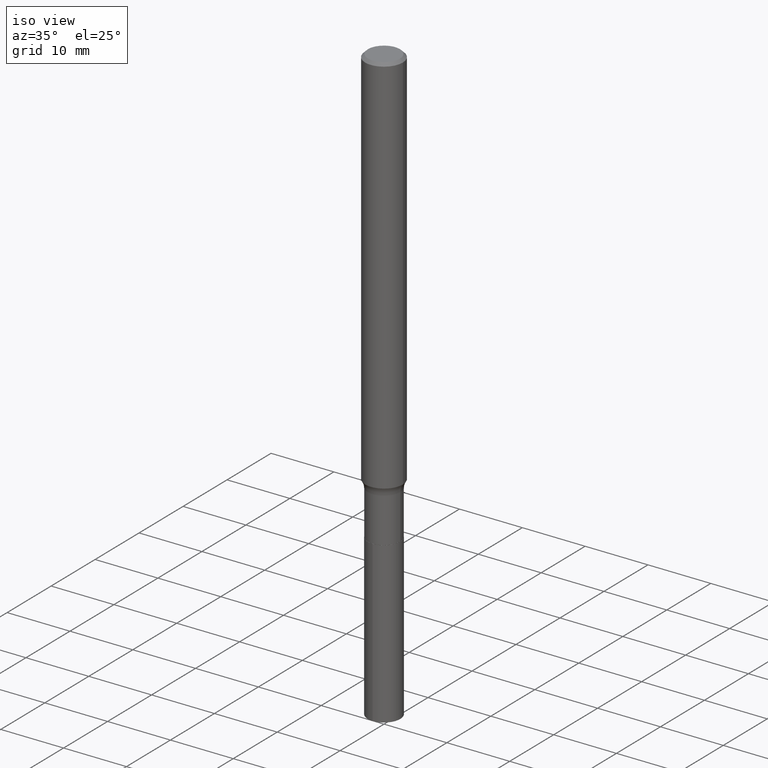
[diagram: clean part render]
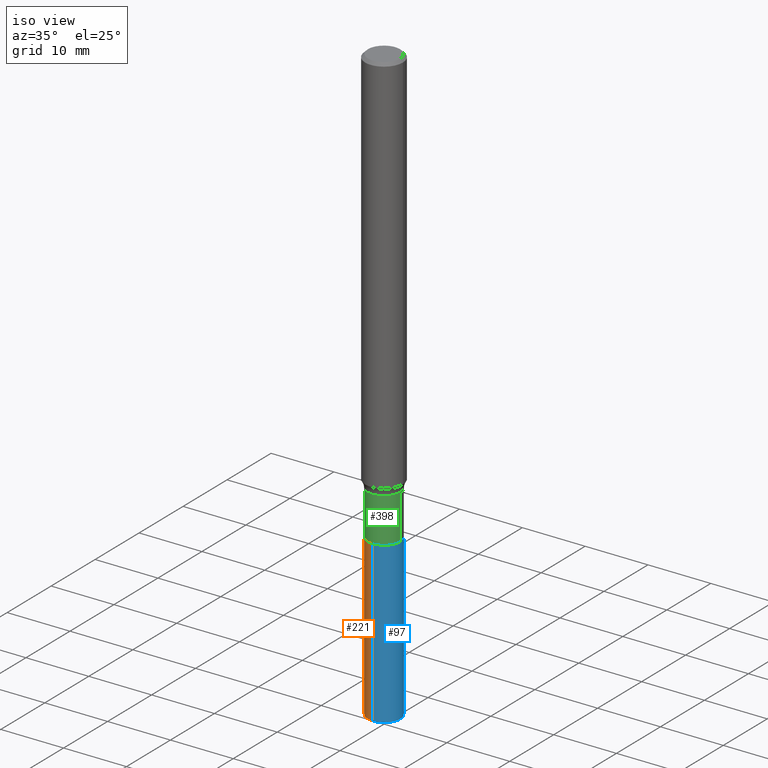
[diagram: same view with three faces highlighted in distinct colors, each labeled with its STEP entity id]
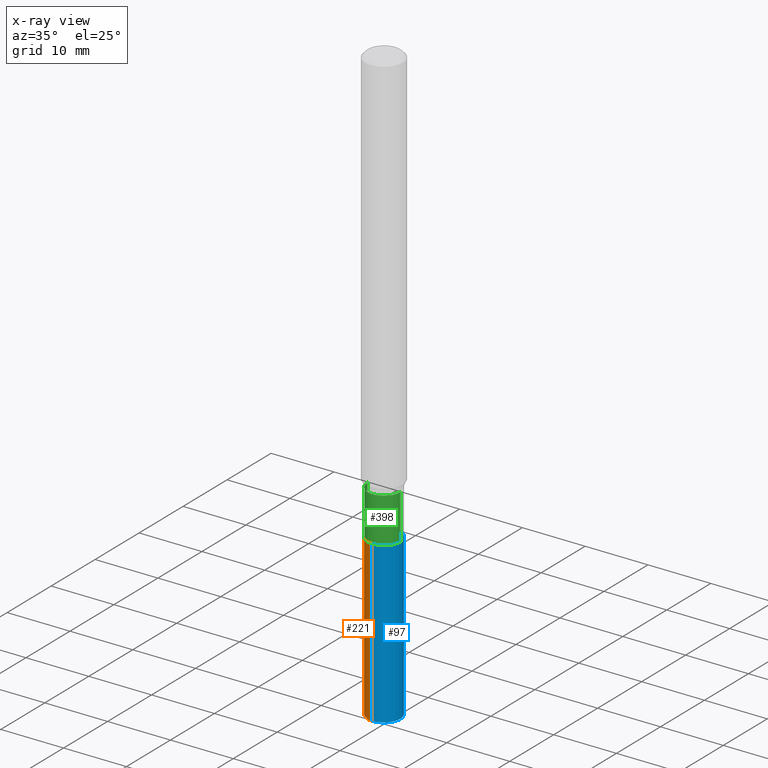
[diagram: x-ray of the same camera — body ghosted, the three highlighted faces saturated]
A machine part, iso view with three faces highlighted in distinct colors.
The next image is the same camera in x-ray (body ghosted, the three faces saturated) — at least one of them is partly hidden behind the body in this view.
Their STEP definitions:

[orange] entity #221 — the highlighted cylindrical surface (edge-blend (fillet) strip) has radius 2.5997 mm, axis along (-0, 0, 1).
#19 = EDGE_CURVE ( 'NONE', #412, #78, #111, .T. ) ;
#20 = DIRECTION ( 'NONE',  ( -6.982962677686265922E-15, -1.000000000000000000, 5.338247178630704739E-15 ) ) ;
#24 = ORIENTED_EDGE ( 'NONE', *, *, #193, .T. ) ;
#31 = CARTESIAN_POINT ( 'NONE',  ( -7.147062300611223431E-16, -0.1023500000000095583, -2.736199999999999743 ) ) ;
#32 = ORIENTED_EDGE ( 'NONE', *, *, #19, .T. ) ;
#35 = VECTOR ( 'NONE', #200, 39.37007874015748143 ) ;
#40 = ORIENTED_EDGE ( 'NONE', *, *, #215, .F. ) ;
#47 = CARTESIAN_POINT ( 'NONE',  ( -7.147062300610980856E-16, -0.1023500000000130833, -3.740200000000000191 ) ) ;
#72 = CARTESIAN_POINT ( 'NONE',  ( 7.272404900505293716E-16, 0.1023499999999904347, -2.736200000000000632 ) ) ;
#77 = DIRECTION ( 'NONE',  ( -2.438872900097953269E-29, 3.500927051775652151E-15, 1.000000000000000000 ) ) ;
#78 = VERTEX_POINT ( 'NONE', #47 ) ;
#86 = CARTESIAN_POINT ( 'NONE',  ( 9.139920139182118548E-29, -1.306832199932537301E-14, -3.740200000000000635 ) ) ;
#98 = EDGE_LOOP ( 'NONE', ( #284, #32, #24, #40 ) ) ;
#111 = CIRCLE ( 'NONE', #462, 0.1023500000000000243 ) ;
#113 = DIRECTION ( 'NONE',  ( -2.438872900097953269E-29, 3.500927051775652151E-15, 1.000000000000000000 ) ) ;
#123 = VERTEX_POINT ( 'NONE', #313 ) ;
#165 = DIRECTION ( 'NONE',  ( -6.982962677686265922E-15, -1.000000000000000000, 5.338247178630704739E-15 ) ) ;
#170 = VECTOR ( 'NONE', #113, 39.37007874015748143 ) ;
#193 = EDGE_CURVE ( 'NONE', #78, #303, #409, .T. ) ;
#197 = FACE_OUTER_BOUND ( 'NONE', #98, .T. ) ;
#200 = DIRECTION ( 'NONE',  ( -2.438872900097953269E-29, 3.500927051775652151E-15, 1.000000000000000000 ) ) ;
#207 = DIRECTION ( 'NONE',  ( -2.438872900097953269E-29, 3.500927051775652151E-15, 1.000000000000000000 ) ) ;
#215 = EDGE_CURVE ( 'NONE', #123, #303, #306, .T. ) ;
#221 = ADVANCED_FACE ( 'NONE', ( #197 ), #452, .T. ) ;
#243 = CARTESIAN_POINT ( 'NONE',  ( 6.691291747483770374E-29, -9.553391239342616361E-15, -2.736200000000000188 ) ) ;
#245 = CARTESIAN_POINT ( 'NONE',  ( -7.147062300611223431E-16, -0.1023500000000095583, -2.736199999999999743 ) ) ;
#252 = CARTESIAN_POINT ( 'NONE',  ( 7.272404900505416975E-16, 0.1023499999999869514, -3.740200000000001079 ) ) ;
#284 = ORIENTED_EDGE ( 'NONE', *, *, #386, .F. ) ;
#303 = VERTEX_POINT ( 'NONE', #31 ) ;
#306 = CIRCLE ( 'NONE', #323, 0.1023499999999999965 ) ;
#313 = CARTESIAN_POINT ( 'NONE',  ( 7.272404900505540235E-16, 0.1023499999999904347, -2.736200000000000632 ) ) ;
#323 = AXIS2_PLACEMENT_3D ( 'NONE', #243, #339, #20 ) ;
#339 = DIRECTION ( 'NONE',  ( -2.438872900097953269E-29, 3.500927051775652151E-15, 1.000000000000000000 ) ) ;
#374 = CARTESIAN_POINT ( 'NONE',  ( 6.691291747483770374E-29, -9.553391239342616361E-15, -2.736200000000000188 ) ) ;
#386 = EDGE_CURVE ( 'NONE', #412, #123, #466, .T. ) ;
#409 = LINE ( 'NONE', #245, #35 ) ;
#412 = VERTEX_POINT ( 'NONE', #252 ) ;
#424 = AXIS2_PLACEMENT_3D ( 'NONE', #374, #207, #165 ) ;
#440 = DIRECTION ( 'NONE',  ( -6.982962677686265133E-15, -1.000000000000000000, 5.338247178630703951E-15 ) ) ;
#452 = CYLINDRICAL_SURFACE ( 'NONE', #424, 0.1023499999999999965 ) ;
#462 = AXIS2_PLACEMENT_3D ( 'NONE', #86, #77, #440 ) ;
#466 = LINE ( 'NONE', #72, #170 ) ;

[blue] entity #97 — the highlighted cylindrical surface (edge-blend (fillet) strip) has radius 2.5997 mm, axis along (-0, 0, 1).
#31 = CARTESIAN_POINT ( 'NONE',  ( -7.147062300611223431E-16, -0.1023500000000095583, -2.736199999999999743 ) ) ;
#35 = VECTOR ( 'NONE', #200, 39.37007874015748143 ) ;
#47 = CARTESIAN_POINT ( 'NONE',  ( -7.147062300610980856E-16, -0.1023500000000130833, -3.740200000000000191 ) ) ;
#53 = ORIENTED_EDGE ( 'NONE', *, *, #249, .F. ) ;
#54 = AXIS2_PLACEMENT_3D ( 'NONE', #107, #465, #250 ) ;
#55 = AXIS2_PLACEMENT_3D ( 'NONE', #275, #240, #379 ) ;
#72 = CARTESIAN_POINT ( 'NONE',  ( 7.272404900505293716E-16, 0.1023499999999904347, -2.736200000000000632 ) ) ;
#78 = VERTEX_POINT ( 'NONE', #47 ) ;
#97 = ADVANCED_FACE ( 'NONE', ( #120 ), #344, .T. ) ;
#107 = CARTESIAN_POINT ( 'NONE',  ( 9.139920139182118548E-29, -1.306832199932537301E-14, -3.740200000000000635 ) ) ;
#113 = DIRECTION ( 'NONE',  ( -2.438872900097953269E-29, 3.500927051775652151E-15, 1.000000000000000000 ) ) ;
#117 = ORIENTED_EDGE ( 'NONE', *, *, #193, .F. ) ;
#120 = FACE_OUTER_BOUND ( 'NONE', #394, .T. ) ;
#123 = VERTEX_POINT ( 'NONE', #313 ) ;
#170 = VECTOR ( 'NONE', #113, 39.37007874015748143 ) ;
#193 = EDGE_CURVE ( 'NONE', #78, #303, #409, .T. ) ;
#200 = DIRECTION ( 'NONE',  ( -2.438872900097953269E-29, 3.500927051775652151E-15, 1.000000000000000000 ) ) ;
#202 = CARTESIAN_POINT ( 'NONE',  ( 6.691291747483770374E-29, -9.553391239342616361E-15, -2.736200000000000188 ) ) ;
#240 = DIRECTION ( 'NONE',  ( -2.438872900097953269E-29, 3.500927051775652151E-15, 1.000000000000000000 ) ) ;
#245 = CARTESIAN_POINT ( 'NONE',  ( -7.147062300611223431E-16, -0.1023500000000095583, -2.736199999999999743 ) ) ;
#247 = AXIS2_PLACEMENT_3D ( 'NONE', #202, #315, #419 ) ;
#249 = EDGE_CURVE ( 'NONE', #303, #123, #455, .T. ) ;
#250 = DIRECTION ( 'NONE',  ( -6.982962677686265133E-15, -1.000000000000000000, 5.338247178630703951E-15 ) ) ;
#252 = CARTESIAN_POINT ( 'NONE',  ( 7.272404900505416975E-16, 0.1023499999999869514, -3.740200000000001079 ) ) ;
#253 = CIRCLE ( 'NONE', #54, 0.1023500000000000243 ) ;
#275 = CARTESIAN_POINT ( 'NONE',  ( 6.691291747483770374E-29, -9.553391239342616361E-15, -2.736200000000000188 ) ) ;
#290 = EDGE_CURVE ( 'NONE', #78, #412, #253, .T. ) ;
#303 = VERTEX_POINT ( 'NONE', #31 ) ;
#313 = CARTESIAN_POINT ( 'NONE',  ( 7.272404900505540235E-16, 0.1023499999999904347, -2.736200000000000632 ) ) ;
#315 = DIRECTION ( 'NONE',  ( -2.438872900097953269E-29, 3.500927051775652151E-15, 1.000000000000000000 ) ) ;
#344 = CYLINDRICAL_SURFACE ( 'NONE', #247, 0.1023499999999999965 ) ;
#379 = DIRECTION ( 'NONE',  ( -6.982962677686265922E-15, -1.000000000000000000, 5.338247178630704739E-15 ) ) ;
#386 = EDGE_CURVE ( 'NONE', #412, #123, #466, .T. ) ;
#394 = EDGE_LOOP ( 'NONE', ( #397, #450, #53, #117 ) ) ;
#397 = ORIENTED_EDGE ( 'NONE', *, *, #290, .T. ) ;
#409 = LINE ( 'NONE', #245, #35 ) ;
#412 = VERTEX_POINT ( 'NONE', #252 ) ;
#419 = DIRECTION ( 'NONE',  ( -6.982962677686265922E-15, -1.000000000000000000, 5.338247178630704739E-15 ) ) ;
#450 = ORIENTED_EDGE ( 'NONE', *, *, #386, .T. ) ;
#455 = CIRCLE ( 'NONE', #55, 0.1023499999999999965 ) ;
#465 = DIRECTION ( 'NONE',  ( -2.438872900097953269E-29, 3.500927051775652151E-15, 1.000000000000000000 ) ) ;
#466 = LINE ( 'NONE', #72, #170 ) ;

[green] entity #398 — the highlighted cylindrical surface (edge-blend (fillet) strip) has radius 2.5997 mm, axis along (-0, 0, 1).
#10 = ORIENTED_EDGE ( 'NONE', *, *, #106, .T. ) ;
#11 = EDGE_CURVE ( 'NONE', #125, #241, #262, .T. ) ;
#18 = CARTESIAN_POINT ( 'NONE',  ( 0.1023499999999999688, -9.288038657590533619E-15, -2.455500000000000238 ) ) ;
#23 = CARTESIAN_POINT ( 'NONE',  ( 0.1023499999999999965, -1.026635172873438366E-14, -2.735700000000000021 ) ) ;
#38 = EDGE_CURVE ( 'NONE', #105, #101, #296, .T. ) ;
#46 = AXIS2_PLACEMENT_3D ( 'NONE', #288, #426, #145 ) ;
#66 = AXIS2_PLACEMENT_3D ( 'NONE', #272, #100, #316 ) ;
#82 = DIRECTION ( 'NONE',  ( -2.445468806185136877E-29, 3.491481338843145188E-15, 1.000000000000000000 ) ) ;
#94 = ORIENTED_EDGE ( 'NONE', *, *, #407, .F. ) ;
#100 = DIRECTION ( 'NONE',  ( -2.445468806185136597E-29, 3.491481338843145583E-15, 1.000000000000000000 ) ) ;
#101 = VERTEX_POINT ( 'NONE', #421 ) ;
#105 = VERTEX_POINT ( 'NONE', #234 ) ;
#106 = EDGE_CURVE ( 'NONE', #105, #125, #318, .T. ) ;
#115 = VECTOR ( 'NONE', #157, 39.37007874015748143 ) ;
#125 = VERTEX_POINT ( 'NONE', #23 ) ;
#132 = EDGE_LOOP ( 'NONE', ( #330, #10, #235, #94 ) ) ;
#142 = CYLINDRICAL_SURFACE ( 'NONE', #46, 0.1023499999999999827 ) ;
#145 = DIRECTION ( 'NONE',  ( 1.000000000000000000, -6.982962677686266711E-15, 4.876176775795936353E-29 ) ) ;
#157 = DIRECTION ( 'NONE',  ( -2.445468806185136877E-29, 3.491481338843145188E-15, 1.000000000000000000 ) ) ;
#160 = CARTESIAN_POINT ( 'NONE',  ( 0.1023499999999999827, -7.147062300611892976E-16, 4.990766930027139796E-30 ) ) ;
#183 = VECTOR ( 'NONE', #82, 39.37007874015748143 ) ;
#185 = CARTESIAN_POINT ( 'NONE',  ( -0.1023499999999999827, 7.272404900504624170E-16, -5.034530064875895945E-30 ) ) ;
#211 = DIRECTION ( 'NONE',  ( -2.445468806185136597E-29, 3.491481338843145583E-15, 1.000000000000000000 ) ) ;
#214 = CARTESIAN_POINT ( 'NONE',  ( 6.004848653587603460E-29, -8.573332427529345603E-15, -2.455500000000000238 ) ) ;
#234 = CARTESIAN_POINT ( 'NONE',  ( -0.1023499999999999965, -8.335248473050806926E-15, -2.735700000000000021 ) ) ;
#235 = ORIENTED_EDGE ( 'NONE', *, *, #11, .T. ) ;
#238 = AXIS2_PLACEMENT_3D ( 'NONE', #214, #211, #348 ) ;
#241 = VERTEX_POINT ( 'NONE', #18 ) ;
#262 = LINE ( 'NONE', #160, #183 ) ;
#272 = CARTESIAN_POINT ( 'NONE',  ( 6.690069013080677573E-29, -9.551645498673194068E-15, -2.735700000000000021 ) ) ;
#288 = CARTESIAN_POINT ( 'NONE',  ( 0.000000000000000000, 0.000000000000000000, 0.000000000000000000 ) ) ;
#296 = LINE ( 'NONE', #185, #115 ) ;
#316 = DIRECTION ( 'NONE',  ( 1.000000000000000000, -6.982962677686270655E-15, 0.000000000000000000 ) ) ;
#317 = FACE_OUTER_BOUND ( 'NONE', #132, .T. ) ;
#318 = CIRCLE ( 'NONE', #66, 0.1023499999999999965 ) ;
#330 = ORIENTED_EDGE ( 'NONE', *, *, #38, .F. ) ;
#348 = DIRECTION ( 'NONE',  ( 1.000000000000000000, -6.982962677686262766E-15, 0.000000000000000000 ) ) ;
#398 = ADVANCED_FACE ( 'NONE', ( #317 ), #142, .T. ) ;
#407 = EDGE_CURVE ( 'NONE', #101, #241, #413, .T. ) ;
#413 = CIRCLE ( 'NONE', #238, 0.1023499999999999688 ) ;
#421 = CARTESIAN_POINT ( 'NONE',  ( -0.1023499999999999688, -8.335248473050806926E-15, -2.455500000000000238 ) ) ;
#426 = DIRECTION ( 'NONE',  ( -2.445468806185136597E-29, 3.491481338843145583E-15, 1.000000000000000000 ) ) ;